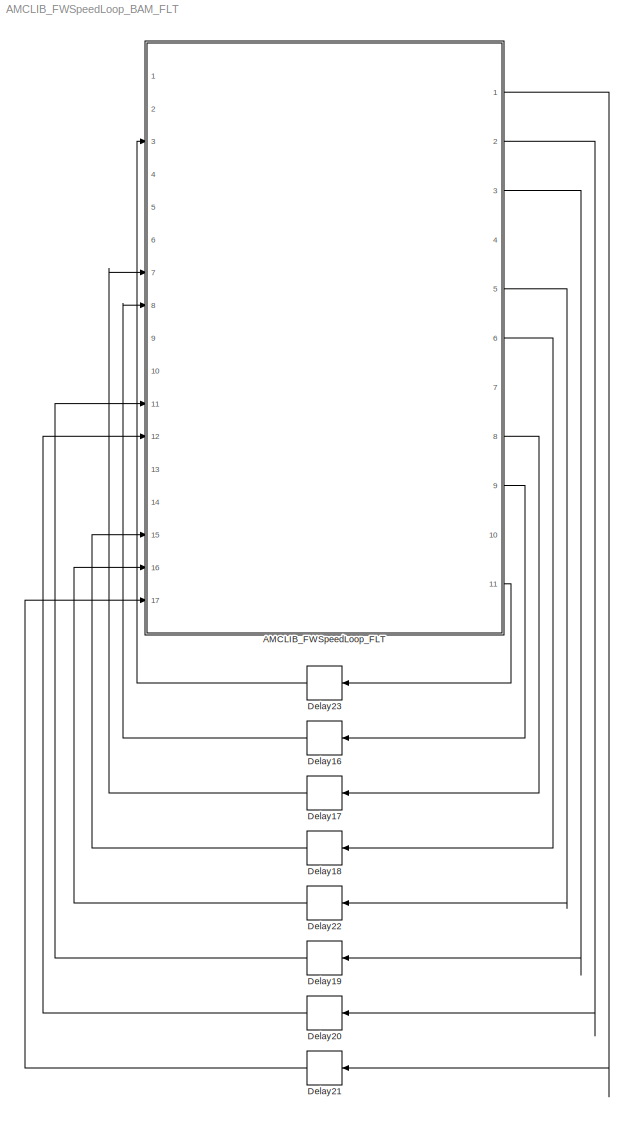
MODEL AMCLIB_FWSpeedLoop_BAM_FLT
KIND model
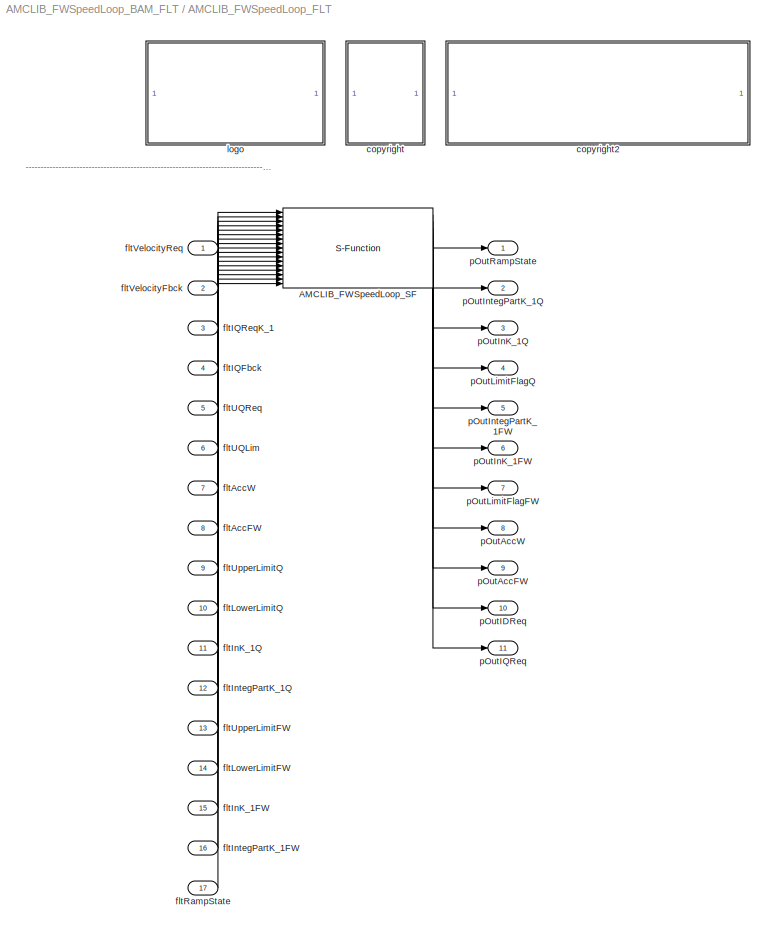
BLOCK [SubSystem] AMCLIB_FWSpeedLoop_FLT
  Ports = [17, 11]
  RequestExecContextInheritance = off
  SID = 1
BLOCK [S-Function] AMCLIB_FWSpeedLoop_FLT/AMCLIB_FWSpeedLoop_SF
  EnableBusSupport = off
  FunctionName = AMCLIB_FWSpeedLoop_SF_FLT
  Parameters = fltLambdaW,fltLambdaFW,fltPropGainQ,fltIntegGainQ,fltPropGainFW,fltIntegGainFW,fltRampUp,fltRampDown,fltUmaxDivImax
  Ports = [17, 11]
  SID = 4
BLOCK [SubSystem] AMCLIB_FWSpeedLoop_FLT/<copyright redacted>
  Ports = []
  RequestExecContextInheritance = off
  SID = 37
BLOCK [SubSystem] AMCLIB_FWSpeedLoop_FLT/copyright2
  Ports = []
  RequestExecContextInheritance = off
  SID = 40
BLOCK [Inport] AMCLIB_FWSpeedLoop_FLT/fltAccFW
  IconDisplay = Port number
  Port = 8
  SID = 12
BLOCK [Inport] AMCLIB_FWSpeedLoop_FLT/fltAccW
  IconDisplay = Port number
  Port = 7
  SID = 11
BLOCK [Inport] AMCLIB_FWSpeedLoop_FLT/fltIQFbck
  IconDisplay = Port number
  Port = 4
  SID = 8
BLOCK [Inport] AMCLIB_FWSpeedLoop_FLT/fltIQReqK_1
  IconDisplay = Port number
  Port = 3
  SID = 7
BLOCK [Inport] AMCLIB_FWSpeedLoop_FLT/fltInK_1FW
  IconDisplay = Port number
  Port = 15
  SID = 19
BLOCK [Inport] AMCLIB_FWSpeedLoop_FLT/fltInK_1Q
  IconDisplay = Port number
  Port = 11
  SID = 15
BLOCK [Inport] AMCLIB_FWSpeedLoop_FLT/fltIntegPartK_1FW
  IconDisplay = Port number
  Port = 16
  SID = 20
BLOCK [Inport] AMCLIB_FWSpeedLoop_FLT/fltIntegPartK_1Q
  IconDisplay = Port number
  Port = 12
  SID = 16
BLOCK [Inport] AMCLIB_FWSpeedLoop_FLT/fltLowerLimitFW
  IconDisplay = Port number
  Port = 14
  SID = 18
BLOCK [Inport] AMCLIB_FWSpeedLoop_FLT/fltLowerLimitQ
  IconDisplay = Port number
  Port = 10
  SID = 14
BLOCK [Inport] AMCLIB_FWSpeedLoop_FLT/fltRampState
  IconDisplay = Port number
  Port = 17
  SID = 21
BLOCK [Inport] AMCLIB_FWSpeedLoop_FLT/fltUQLim
  IconDisplay = Port number
  Port = 6
  SID = 10
BLOCK [Inport] AMCLIB_FWSpeedLoop_FLT/fltUQReq
  IconDisplay = Port number
  Port = 5
  SID = 9
BLOCK [Inport] AMCLIB_FWSpeedLoop_FLT/fltUpperLimitFW
  IconDisplay = Port number
  Port = 13
  SID = 17
BLOCK [Inport] AMCLIB_FWSpeedLoop_FLT/fltUpperLimitQ
  IconDisplay = Port number
  Port = 9
  SID = 13
BLOCK [Inport] AMCLIB_FWSpeedLoop_FLT/fltVelocityFbck
  IconDisplay = Port number
  Port = 2
  SID = 6
BLOCK [Inport] AMCLIB_FWSpeedLoop_FLT/fltVelocityReq
  IconDisplay = Port number
  SID = 5
BLOCK [SubSystem] AMCLIB_FWSpeedLoop_FLT/logo
  Ports = []
  RequestExecContextInheritance = off
  SID = 33
BLOCK [Outport] AMCLIB_FWSpeedLoop_FLT/pOutAccFW
  IconDisplay = Port number
  Port = 9
  SID = 30
BLOCK [Outport] AMCLIB_FWSpeedLoop_FLT/pOutAccW
  IconDisplay = Port number
  Port = 8
  SID = 29
BLOCK [Outport] AMCLIB_FWSpeedLoop_FLT/pOutIDReq
  IconDisplay = Port number
  Port = 10
  SID = 31
BLOCK [Outport] AMCLIB_FWSpeedLoop_FLT/pOutIQReq
  IconDisplay = Port number
  Port = 11
  SID = 32
BLOCK [Outport] AMCLIB_FWSpeedLoop_FLT/pOutInK_1FW
  IconDisplay = Port number
  Port = 6
  SID = 27
BLOCK [Outport] AMCLIB_FWSpeedLoop_FLT/pOutInK_1Q
  IconDisplay = Port number
  Port = 3
  SID = 24
BLOCK [Outport] AMCLIB_FWSpeedLoop_FLT/pOutIntegPartK_1FW
  IconDisplay = Port number
  Port = 5
  SID = 26
BLOCK [Outport] AMCLIB_FWSpeedLoop_FLT/pOutIntegPartK_1Q
  IconDisplay = Port number
  Port = 2
  SID = 23
BLOCK [Outport] AMCLIB_FWSpeedLoop_FLT/pOutLimitFlagFW
  IconDisplay = Port number
  Port = 7
  SID = 28
BLOCK [Outport] AMCLIB_FWSpeedLoop_FLT/pOutLimitFlagQ
  IconDisplay = Port number
  Port = 4
  SID = 25
BLOCK [Outport] AMCLIB_FWSpeedLoop_FLT/pOutRampState
  IconDisplay = Port number
  SID = 22
BLOCK [Delay] Delay16
  DelayLength = 1
  InitialCondition = 0
  InputPortMap = u0
  Ports = [1, 1]
  SID = 43
BLOCK [Delay] Delay17
  DelayLength = 1
  InitialCondition = 0
  InputPortMap = u0
  Ports = [1, 1]
  SID = 44
BLOCK [Delay] Delay18
  DelayLength = 1
  InitialCondition = 0
  InputPortMap = u0
  Ports = [1, 1]
  SID = 45
BLOCK [Delay] Delay19
  DelayLength = 1
  InitialCondition = 0
  InputPortMap = u0
  Ports = [1, 1]
  SID = 46
BLOCK [Delay] Delay20
  DelayLength = 1
  InitialCondition = 0
  InputPortMap = u0
  Ports = [1, 1]
  SID = 47
BLOCK [Delay] Delay21
  DelayLength = 1
  InitialCondition = 0
  InputPortMap = u0
  Ports = [1, 1]
  SID = 48
BLOCK [Delay] Delay22
  DelayLength = 1
  InitialCondition = 0
  InputPortMap = u0
  Ports = [1, 1]
  SID = 49
BLOCK [Delay] Delay23
  DelayLength = 1
  InitialCondition = 0
  InputPortMap = u0
  Ports = [1, 1]
  SID = 50
ANNOTATION AMCLIB_FWSpeedLoop_FLT: ---------------------------------------------------------------------------------------------------------------------------------------------------------------------------------------------------
LINE AMCLIB_FWSpeedLoop_FLT/AMCLIB_FWSpeedLoop_SF:1 -> AMCLIB_FWSpeedLoop_FLT/pOutRampState:1
LINE AMCLIB_FWSpeedLoop_FLT/AMCLIB_FWSpeedLoop_SF:10 -> AMCLIB_FWSpeedLoop_FLT/pOutIDReq:1
LINE AMCLIB_FWSpeedLoop_FLT/AMCLIB_FWSpeedLoop_SF:11 -> AMCLIB_FWSpeedLoop_FLT/pOutIQReq:1
LINE AMCLIB_FWSpeedLoop_FLT/AMCLIB_FWSpeedLoop_SF:2 -> AMCLIB_FWSpeedLoop_FLT/pOutIntegPartK_1Q:1
LINE AMCLIB_FWSpeedLoop_FLT/AMCLIB_FWSpeedLoop_SF:3 -> AMCLIB_FWSpeedLoop_FLT/pOutInK_1Q:1
LINE AMCLIB_FWSpeedLoop_FLT/AMCLIB_FWSpeedLoop_SF:4 -> AMCLIB_FWSpeedLoop_FLT/pOutLimitFlagQ:1
LINE AMCLIB_FWSpeedLoop_FLT/AMCLIB_FWSpeedLoop_SF:5 -> AMCLIB_FWSpeedLoop_FLT/pOutIntegPartK_1FW:1
LINE AMCLIB_FWSpeedLoop_FLT/AMCLIB_FWSpeedLoop_SF:6 -> AMCLIB_FWSpeedLoop_FLT/pOutInK_1FW:1
LINE AMCLIB_FWSpeedLoop_FLT/AMCLIB_FWSpeedLoop_SF:7 -> AMCLIB_FWSpeedLoop_FLT/pOutLimitFlagFW:1
LINE AMCLIB_FWSpeedLoop_FLT/AMCLIB_FWSpeedLoop_SF:8 -> AMCLIB_FWSpeedLoop_FLT/pOutAccW:1
LINE AMCLIB_FWSpeedLoop_FLT/AMCLIB_FWSpeedLoop_SF:9 -> AMCLIB_FWSpeedLoop_FLT/pOutAccFW:1
LINE AMCLIB_FWSpeedLoop_FLT/fltAccFW:1 -> AMCLIB_FWSpeedLoop_FLT/AMCLIB_FWSpeedLoop_SF:8
LINE AMCLIB_FWSpeedLoop_FLT/fltAccW:1 -> AMCLIB_FWSpeedLoop_FLT/AMCLIB_FWSpeedLoop_SF:7
LINE AMCLIB_FWSpeedLoop_FLT/fltIQFbck:1 -> AMCLIB_FWSpeedLoop_FLT/AMCLIB_FWSpeedLoop_SF:4
LINE AMCLIB_FWSpeedLoop_FLT/fltIQReqK_1:1 -> AMCLIB_FWSpeedLoop_FLT/AMCLIB_FWSpeedLoop_SF:3
LINE AMCLIB_FWSpeedLoop_FLT/fltInK_1FW:1 -> AMCLIB_FWSpeedLoop_FLT/AMCLIB_FWSpeedLoop_SF:15
LINE AMCLIB_FWSpeedLoop_FLT/fltInK_1Q:1 -> AMCLIB_FWSpeedLoop_FLT/AMCLIB_FWSpeedLoop_SF:11
LINE AMCLIB_FWSpeedLoop_FLT/fltIntegPartK_1FW:1 -> AMCLIB_FWSpeedLoop_FLT/AMCLIB_FWSpeedLoop_SF:16
LINE AMCLIB_FWSpeedLoop_FLT/fltIntegPartK_1Q:1 -> AMCLIB_FWSpeedLoop_FLT/AMCLIB_FWSpeedLoop_SF:12
LINE AMCLIB_FWSpeedLoop_FLT/fltLowerLimitFW:1 -> AMCLIB_FWSpeedLoop_FLT/AMCLIB_FWSpeedLoop_SF:14
LINE AMCLIB_FWSpeedLoop_FLT/fltLowerLimitQ:1 -> AMCLIB_FWSpeedLoop_FLT/AMCLIB_FWSpeedLoop_SF:10
LINE AMCLIB_FWSpeedLoop_FLT/fltRampState:1 -> AMCLIB_FWSpeedLoop_FLT/AMCLIB_FWSpeedLoop_SF:17
LINE AMCLIB_FWSpeedLoop_FLT/fltUQLim:1 -> AMCLIB_FWSpeedLoop_FLT/AMCLIB_FWSpeedLoop_SF:6
LINE AMCLIB_FWSpeedLoop_FLT/fltUQReq:1 -> AMCLIB_FWSpeedLoop_FLT/AMCLIB_FWSpeedLoop_SF:5
LINE AMCLIB_FWSpeedLoop_FLT/fltUpperLimitFW:1 -> AMCLIB_FWSpeedLoop_FLT/AMCLIB_FWSpeedLoop_SF:13
LINE AMCLIB_FWSpeedLoop_FLT/fltUpperLimitQ:1 -> AMCLIB_FWSpeedLoop_FLT/AMCLIB_FWSpeedLoop_SF:9
LINE AMCLIB_FWSpeedLoop_FLT/fltVelocityFbck:1 -> AMCLIB_FWSpeedLoop_FLT/AMCLIB_FWSpeedLoop_SF:2
LINE AMCLIB_FWSpeedLoop_FLT/fltVelocityReq:1 -> AMCLIB_FWSpeedLoop_FLT/AMCLIB_FWSpeedLoop_SF:1
LINE AMCLIB_FWSpeedLoop_FLT:1 -> Delay21:1
LINE AMCLIB_FWSpeedLoop_FLT:11 -> Delay23:1
LINE AMCLIB_FWSpeedLoop_FLT:2 -> Delay20:1
LINE AMCLIB_FWSpeedLoop_FLT:3 -> Delay19:1
LINE AMCLIB_FWSpeedLoop_FLT:5 -> Delay22:1
LINE AMCLIB_FWSpeedLoop_FLT:6 -> Delay18:1
LINE AMCLIB_FWSpeedLoop_FLT:8 -> Delay17:1
LINE AMCLIB_FWSpeedLoop_FLT:9 -> Delay16:1
LINE Delay16:1 -> AMCLIB_FWSpeedLoop_FLT:8
LINE Delay17:1 -> AMCLIB_FWSpeedLoop_FLT:7
LINE Delay18:1 -> AMCLIB_FWSpeedLoop_FLT:15
LINE Delay19:1 -> AMCLIB_FWSpeedLoop_FLT:11
LINE Delay20:1 -> AMCLIB_FWSpeedLoop_FLT:12
LINE Delay21:1 -> AMCLIB_FWSpeedLoop_FLT:17
LINE Delay22:1 -> AMCLIB_FWSpeedLoop_FLT:16
LINE Delay23:1 -> AMCLIB_FWSpeedLoop_FLT:3
